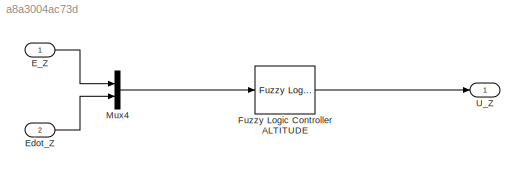
MODEL slx_a8a3004ac73d
KIND model
CONFIG AbsTol = auto
CONFIG EnableMultiTasking = off
CONFIG FixedStep = auto
CONFIG MaxStep = auto
CONFIG MinStep = auto
CONFIG RelTol = 1e-3
CONFIG SampleTimeConstraint = Unconstrained
CONFIG Solver = VariableStepAuto
CONFIG SolverName = VariableStepAuto
CONFIG StartTime = 0.0
CONFIG StopTime = 10.0
BLOCK [Inport] E_Z
  IconDisplay = Port number
  OutputFunctionCall = on
BLOCK [Inport] Edot_Z
  IconDisplay = Port number
  OutputFunctionCall = on
  Port = 2
BLOCK [Reference] Fuzzy Logic Controller ALTITUDE   REF=fuzblock/Fuzzy Logic   (lib defined in mdl_858b3b3e7478)
Controller
  Ports = [1, 1]
  SourceBlock = fuzblock/Fuzzy Logic \nController
  SourceType = FIS
BLOCK [Mux] Mux4
  DisplayOption = bar
  Inputs = 2
  Ports = [2, 1]
BLOCK [Outport] U_Z
  IconDisplay = Port number
LINE E_Z:1 -> Mux4:1
LINE Edot_Z:1 -> Mux4:2
LINE Fuzzy Logic Controller ALTITUDE :1 -> U_Z:1
LINE Mux4:1 -> Fuzzy Logic Controller ALTITUDE :1
